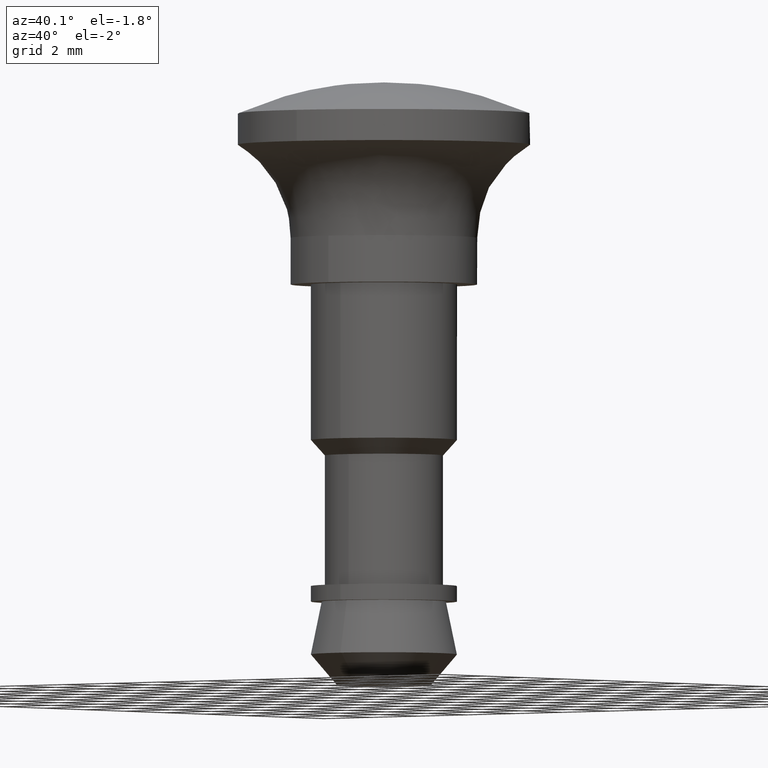
[diagram: clean part render]
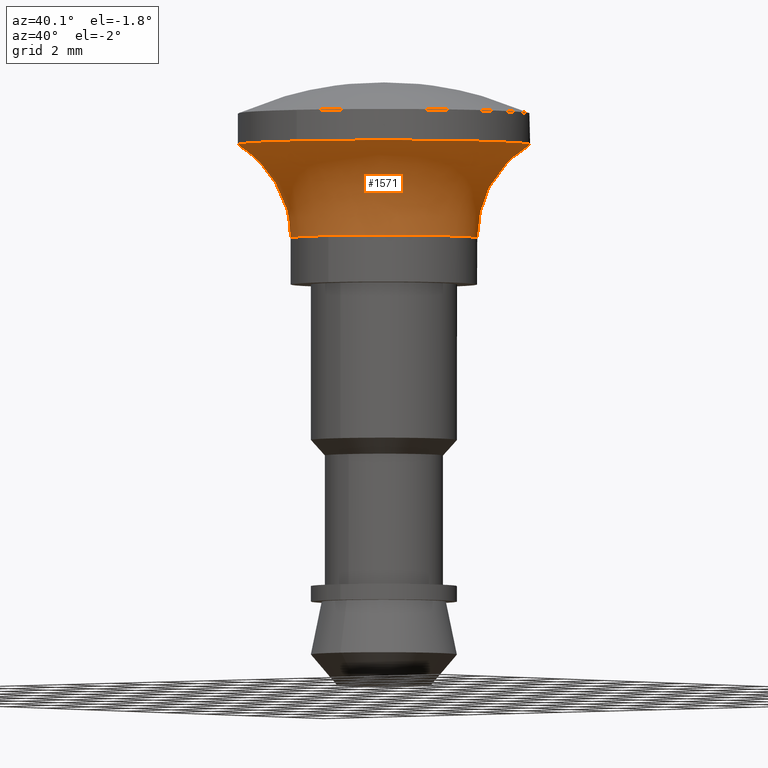
[diagram: same view with one face highlighted and labeled with its STEP entity id]
A machine part, auxiliary view. The second image highlights one B-rep face of the part: STEP entity #1571.
In plain terms, the highlighted face is a freeform B-spline surface patch.
Its self-contained STEP definition (entity closure, byte-faithful):
#70=CARTESIAN_POINT('',(-2.808430836194138,-1.054853657297454,1.498000000000001));
#71=VERTEX_POINT('',#70);
#72=CARTESIAN_POINT('',(-3.0,0.0,1.498000000000000));
#73=VERTEX_POINT('',#72);
#74=CARTESIAN_POINT('',(-2.808430836194138,-1.054853657297454,1.498000000000001));
#75=CARTESIAN_POINT('',(-3.000000000000001,-0.544821864819847,1.498000000000000));
#76=CARTESIAN_POINT('',(-3.0,0.0,1.498000000000000));
#84=(BOUNDED_CURVE()B_SPLINE_CURVE(2,(#74,#75,#76),.UNSPECIFIED.,.F.,.U.)B_SPLINE_CURVE_WITH_KNOTS((3,3),(0.940284200805494,1.0),.UNSPECIFIED.)CURVE()GEOMETRIC_REPRESENTATION_ITEM()RATIONAL_B_SPLINE_CURVE((0.893499591234335,0.930038589439614,1.0))REPRESENTATION_ITEM(''));
#85=EDGE_CURVE('',#71,#73,#84,.T.);
#87=CARTESIAN_POINT('',(-2.470599186242353,1.701804824575161,1.497997071134931));
#88=VERTEX_POINT('',#87);
#89=CARTESIAN_POINT('',(-3.0,0.0,1.498000000000000));
#90=CARTESIAN_POINT('',(-3.000000000000595,0.933245938866376,1.497998535567466));
#91=CARTESIAN_POINT('',(-2.470599186242354,1.701804824575161,1.497997071134931));
#99=(BOUNDED_CURVE()B_SPLINE_CURVE(2,(#89,#90,#91),.UNSPECIFIED.,.F.,.U.)B_SPLINE_CURVE_WITH_KNOTS((3,3),(0.0,0.097429828936804),.UNSPECIFIED.)CURVE()GEOMETRIC_REPRESENTATION_ITEM()RATIONAL_B_SPLINE_CURVE((1.0,0.885853855177021,0.860677625265231))REPRESENTATION_ITEM(''));
#100=EDGE_CURVE('',#73,#88,#99,.T.);
#102=CARTESIAN_POINT('',(1.840320043787088,2.369223952363005,1.497997005857969));
#103=VERTEX_POINT('',#102);
#119=CARTESIAN_POINT('',(3.0,0.0,1.498000000000000));
#120=VERTEX_POINT('',#119);
#121=CARTESIAN_POINT('',(1.840320043787088,2.369223952363005,1.497997005857970));
#122=CARTESIAN_POINT('',(3.000000000000771,1.468430143625183,1.497998502928985));
#123=CARTESIAN_POINT('',(3.0,0.0,1.498000000000000));
#131=(BOUNDED_CURVE()B_SPLINE_CURVE(2,(#121,#122,#123),.UNSPECIFIED.,.F.,.U.)B_SPLINE_CURVE_WITH_KNOTS((3,3),(0.356116021520993,0.500000000000000),.UNSPECIFIED.)CURVE()GEOMETRIC_REPRESENTATION_ITEM()RATIONAL_B_SPLINE_CURVE((0.856895697210534,0.831429433630393,1.0))REPRESENTATION_ITEM(''));
#132=EDGE_CURVE('',#103,#120,#131,.T.);
#134=CARTESIAN_POINT('',(0.183141592714504,-2.994404641494152,1.498000000000070));
#135=VERTEX_POINT('',#134);
#136=CARTESIAN_POINT('',(3.0,0.0,1.498000000000000));
#137=CARTESIAN_POINT('',(3.0,-2.822122002065718,1.498000000000001));
#138=CARTESIAN_POINT('',(0.183141592714504,-2.994404641494152,1.498000000000070));
#146=(BOUNDED_CURVE()B_SPLINE_CURVE(2,(#136,#137,#138),.UNSPECIFIED.,.F.,.U.)B_SPLINE_CURVE_WITH_KNOTS((3,3),(0.500000000000000,0.739333194226175),.UNSPECIFIED.)CURVE()GEOMETRIC_REPRESENTATION_ITEM()RATIONAL_B_SPLINE_CURVE((1.0,0.719603721496762,0.976072538860020))REPRESENTATION_ITEM(''));
#147=EDGE_CURVE('',#120,#135,#146,.T.);
#225=CARTESIAN_POINT('',(0.183141592714504,-2.994404641494152,1.498000000000070));
#226=CARTESIAN_POINT('',(0.091656271306839,-3.000000000000000,1.498000000000000));
#227=CARTESIAN_POINT('',(0.0,-3.0,1.498000000000000));
#228=CARTESIAN_POINT('',(-2.077829207340088,-3.0,1.498000000000001));
#229=CARTESIAN_POINT('',(-2.808430836194138,-1.054853657297454,1.498000000000002));
#237=(BOUNDED_CURVE()B_SPLINE_CURVE(2,(#225,#226,#227,#228,#229),.UNSPECIFIED.,.F.,.U.)B_SPLINE_CURVE_WITH_KNOTS((3,2,3),(0.739333194226175,0.750000000000000,0.940284200805494),.UNSPECIFIED.)CURVE()GEOMETRIC_REPRESENTATION_ITEM()RATIONAL_B_SPLINE_CURVE((0.976072538860020,0.987503059689786,1.0,0.777068191746934,0.893499591234334))REPRESENTATION_ITEM(''));
#238=EDGE_CURVE('',#135,#71,#237,.T.);
#1310=CARTESIAN_POINT('',(-4.399878107368780,-1.652601384581499,4.499666203920985));
#1311=VERTEX_POINT('',#1310);
#1312=CARTESIAN_POINT('',(-4.700000000000000,0.0,4.499666203960731));
#1313=VERTEX_POINT('',#1312);
#1314=CARTESIAN_POINT('',(-4.399878107368779,-1.652601384581500,4.499666203920985));
#1315=CARTESIAN_POINT('',(-4.700000930966199,-0.853552970732249,4.499666203940858));
#1316=CARTESIAN_POINT('',(-4.700000000000000,0.0,4.499666203960731));
#1324=(BOUNDED_CURVE()B_SPLINE_CURVE(2,(#1314,#1315,#1316),.UNSPECIFIED.,.F.,.U.)B_SPLINE_CURVE_WITH_KNOTS((3,3),(0.940284307113158,1.0),.UNSPECIFIED.)CURVE()GEOMETRIC_REPRESENTATION_ITEM()RATIONAL_B_SPLINE_CURVE((0.893499721329846,0.930038713986789,1.0))REPRESENTATION_ITEM(''));
#1325=EDGE_CURVE('',#1311,#1313,#1324,.T.);
#1381=CARTESIAN_POINT('',(0.286922287763427,-4.691235902913967,4.499666203926619));
#1382=VERTEX_POINT('',#1381);
#1388=CARTESIAN_POINT('',(4.700000000000000,0.0,4.499666203960731));
#1389=VERTEX_POINT('',#1388);
#1390=CARTESIAN_POINT('',(4.700000000000000,0.0,4.499666203960731));
#1391=CARTESIAN_POINT('',(4.700000060709562,-4.421325143596317,4.499666203943675));
#1392=CARTESIAN_POINT('',(0.286922287763427,-4.691235902913967,4.499666203926619));
#1400=(BOUNDED_CURVE()B_SPLINE_CURVE(2,(#1390,#1391,#1392),.UNSPECIFIED.,.F.,.U.)B_SPLINE_CURVE_WITH_KNOTS((3,3),(0.500000000000000,0.739333181803199),.UNSPECIFIED.)CURVE()GEOMETRIC_REPRESENTATION_ITEM()RATIONAL_B_SPLINE_CURVE((1.0,0.719603736051183,0.976072512235166))REPRESENTATION_ITEM(''));
#1401=EDGE_CURVE('',#1389,#1382,#1400,.T.);
#1403=CARTESIAN_POINT('',(2.883163764809257,3.711779003359970,4.499662163489473));
#1404=VERTEX_POINT('',#1403);
#1405=CARTESIAN_POINT('',(2.883163764809257,3.711779003359971,4.499662163489474));
#1406=CARTESIAN_POINT('',(4.699997933374476,2.300538031613682,4.499664183725104));
#1407=CARTESIAN_POINT('',(4.700000000000000,0.0,4.499666203960731));
#1415=(BOUNDED_CURVE()B_SPLINE_CURVE(2,(#1405,#1406,#1407),.UNSPECIFIED.,.F.,.U.)B_SPLINE_CURVE_WITH_KNOTS((3,3),(0.356116014561318,0.500000000000000),.UNSPECIFIED.)CURVE()GEOMETRIC_REPRESENTATION_ITEM()RATIONAL_B_SPLINE_CURVE((0.856895699674143,0.831429425476626,1.0))REPRESENTATION_ITEM(''));
#1416=EDGE_CURVE('',#1404,#1389,#1415,.T.);
#1418=CARTESIAN_POINT('',(-3.870603208739954,2.666164060844125,4.499666203887038));
#1419=VERTEX_POINT('',#1418);
#1435=CARTESIAN_POINT('',(-4.700000000000000,0.0,4.499666203960731));
#1436=CARTESIAN_POINT('',(-4.700000000000000,1.462087414509130,4.499666203960730));
#1437=CARTESIAN_POINT('',(-3.870603208739955,2.666164060844125,4.499666203887037));
#1445=(BOUNDED_CURVE()B_SPLINE_CURVE(2,(#1435,#1436,#1437),.UNSPECIFIED.,.F.,.U.)B_SPLINE_CURVE_WITH_KNOTS((3,3),(0.0,0.097429953509399),.UNSPECIFIED.)CURVE()GEOMETRIC_REPRESENTATION_ITEM()RATIONAL_B_SPLINE_CURVE((1.0,0.885853709231149,0.860677560885333))REPRESENTATION_ITEM(''));
#1446=EDGE_CURVE('',#1313,#1419,#1445,.T.);
#1469=CARTESIAN_POINT('',(0.286922287763427,-4.691235902913967,4.499666203926619));
#1470=CARTESIAN_POINT('',(0.143595074809286,-4.700001958638461,4.499666203926502));
#1471=CARTESIAN_POINT('',(0.000000037626590,-4.700001930900740,4.499666203926380));
#1472=CARTESIAN_POINT('',(-3.255269030812446,-4.700001302092490,4.499666203923624));
#1473=CARTESIAN_POINT('',(-4.399878107368779,-1.652601384581500,4.499666203920985));
#1481=(BOUNDED_CURVE()B_SPLINE_CURVE(2,(#1469,#1470,#1471,#1472,#1473),.UNSPECIFIED.,.F.,.U.)B_SPLINE_CURVE_WITH_KNOTS((3,2,3),(0.739333181803199,0.750000000000000,0.940284307113158),.UNSPECIFIED.)CURVE()GEOMETRIC_REPRESENTATION_ITEM()RATIONAL_B_SPLINE_CURVE((0.976072512235166,0.987503045135364,1.0,0.777068067199758,0.893499721329846))REPRESENTATION_ITEM(''));
#1482=EDGE_CURVE('',#1382,#1311,#1481,.T.);
#1504=CARTESIAN_POINT('',(1.843247145158280,2.372991441459786,1.315314919886160));
#1505=CARTESIAN_POINT('',(4.084189775755932,0.632314659342278,1.315314919886161));
#1506=CARTESIAN_POINT('',(2.474526819895735,-1.704513255152990,1.315314919886160));
#1507=CARTESIAN_POINT('',(0.770013564742747,-4.179040075048725,1.315314919886161));
#1508=CARTESIAN_POINT('',(-1.704513255152990,-2.474526819895735,1.315314919886160));
#1509=CARTESIAN_POINT('',(-4.179040075048725,-0.770013564742747,1.315314919886161));
#1510=CARTESIAN_POINT('',(-2.474526819895735,1.704513255152990,1.315314919886160));
#1511=CARTESIAN_POINT('',(1.774082235846026,2.283948722322289,3.472493875755331));
#1512=CARTESIAN_POINT('',(3.930937068328064,0.608588060234234,3.472493875755332));
#1513=CARTESIAN_POINT('',(2.381674147622028,-1.640554113795378,3.472493875755332));
#1514=CARTESIAN_POINT('',(0.741120033826650,-4.022228261417407,3.472493875755331));
#1515=CARTESIAN_POINT('',(-1.640554113795378,-2.381674147622028,3.472493875755332));
#1516=CARTESIAN_POINT('',(-4.022228261417407,-0.741120033826650,3.472493875755331));
#1517=CARTESIAN_POINT('',(-2.381674147622030,1.640554113795378,3.472493875755332));
#1518=CARTESIAN_POINT('',(2.925935598041360,3.766841658023266,4.540387040544688));
#1519=CARTESIAN_POINT('',(6.483165475357175,1.003724311084771,4.540387040544688));
#1520=CARTESIAN_POINT('',(3.928016994172144,-2.705712049350401,4.540387040544688));
#1521=CARTESIAN_POINT('',(1.222304944821743,-6.633729043522544,4.540387040544688));
#1522=CARTESIAN_POINT('',(-2.705712049350400,-3.928016994172144,4.540387040544688));
#1523=CARTESIAN_POINT('',(-6.633729043522544,-1.222304944821744,4.540387040544688));
#1524=CARTESIAN_POINT('',(-3.928016994172144,2.705712049350400,4.540387040544688));
#1532=(BOUNDED_SURFACE()B_SPLINE_SURFACE(2,2,((#1504,#1511,#1518),(#1505,#1512,#1519),(#1506,#1513,#1520),(#1507,#1514,#1521),(#1508,#1515,#1522),(#1509,#1516,#1523),(#1510,#1517,#1524)),.UNSPECIFIED.,.F.,.F.,.U.)B_SPLINE_SURFACE_WITH_KNOTS((3,2,2,3),(3,3),(0.0,7.586616001491278,15.489341003044689,23.392066004598110),(0.0,3.968106248262008),.UNSPECIFIED.)GEOMETRIC_REPRESENTATION_ITEM()RATIONAL_B_SPLINE_SURFACE(((0.861043302611719,0.780709854679835,0.977505800795127),(0.633180189259375,0.574105869058425,0.718822509939086),(0.880857486381488,0.798675418646914,1.0),(0.622860301879287,0.564748804492238,0.707106781186548),(0.880857486381488,0.798675418646914,1.0),(0.622860301879287,0.564748804492238,0.707106781186548),(0.880857486381488,0.798675418646914,1.0)))REPRESENTATION_ITEM('')SURFACE());
#1533=ORIENTED_EDGE('',*,*,#132,.F.);
#1534=CARTESIAN_POINT('',(1.840320043787088,2.369223952363005,1.497997005857969));
#1535=CARTESIAN_POINT('',(1.840318801150608,2.369222770392055,3.480226193743514));
#1536=CARTESIAN_POINT('',(2.883163764809258,3.711779003359970,4.499662163489473));
#1544=(BOUNDED_CURVE()B_SPLINE_CURVE(2,(#1534,#1535,#1536),.UNSPECIFIED.,.F.,.U.)B_SPLINE_CURVE_WITH_KNOTS((3,3),(-1.342773580176713,-0.032801488928201),.UNSPECIFIED.)CURVE()GEOMETRIC_REPRESENTATION_ITEM()RATIONAL_B_SPLINE_CURVE((0.854176149166172,0.791425375087000,0.968488190799603))REPRESENTATION_ITEM(''));
#1545=EDGE_CURVE('',#103,#1404,#1544,.T.);
#1546=ORIENTED_EDGE('',*,*,#1545,.T.);
#1547=ORIENTED_EDGE('',*,*,#1416,.T.);
#1548=ORIENTED_EDGE('',*,*,#1401,.T.);
#1549=ORIENTED_EDGE('',*,*,#1482,.T.);
#1550=ORIENTED_EDGE('',*,*,#1325,.T.);
#1551=ORIENTED_EDGE('',*,*,#1446,.T.);
#1552=CARTESIAN_POINT('',(-2.470599186242354,1.701804824575161,1.497997071134931));
#1553=CARTESIAN_POINT('',(-2.470597123557083,1.701804895052935,3.480231403980461));
#1554=CARTESIAN_POINT('',(-3.870603208739955,2.666164060844125,4.499666203887038));
#1562=(BOUNDED_CURVE()B_SPLINE_CURVE(2,(#1552,#1553,#1554),.UNSPECIFIED.,.F.,.U.)B_SPLINE_CURVE_WITH_KNOTS((3,3),(-1.342773556897110,-0.032798312252830),.UNSPECIFIED.)CURVE()GEOMETRIC_REPRESENTATION_ITEM()RATIONAL_B_SPLINE_CURVE((0.873832304873351,0.809637370355804,0.990775756794485))REPRESENTATION_ITEM(''));
#1563=EDGE_CURVE('',#88,#1419,#1562,.T.);
#1564=ORIENTED_EDGE('',*,*,#1563,.F.);
#1565=ORIENTED_EDGE('',*,*,#100,.F.);
#1566=ORIENTED_EDGE('',*,*,#85,.F.);
#1567=ORIENTED_EDGE('',*,*,#238,.F.);
#1568=ORIENTED_EDGE('',*,*,#147,.F.);
#1569=EDGE_LOOP('',(#1533,#1546,#1547,#1548,#1549,#1550,#1551,#1564,#1565,#1566,#1567,#1568));
#1570=FACE_OUTER_BOUND('',#1569,.T.);
#1571=ADVANCED_FACE('',(#1570),#1532,.F.);